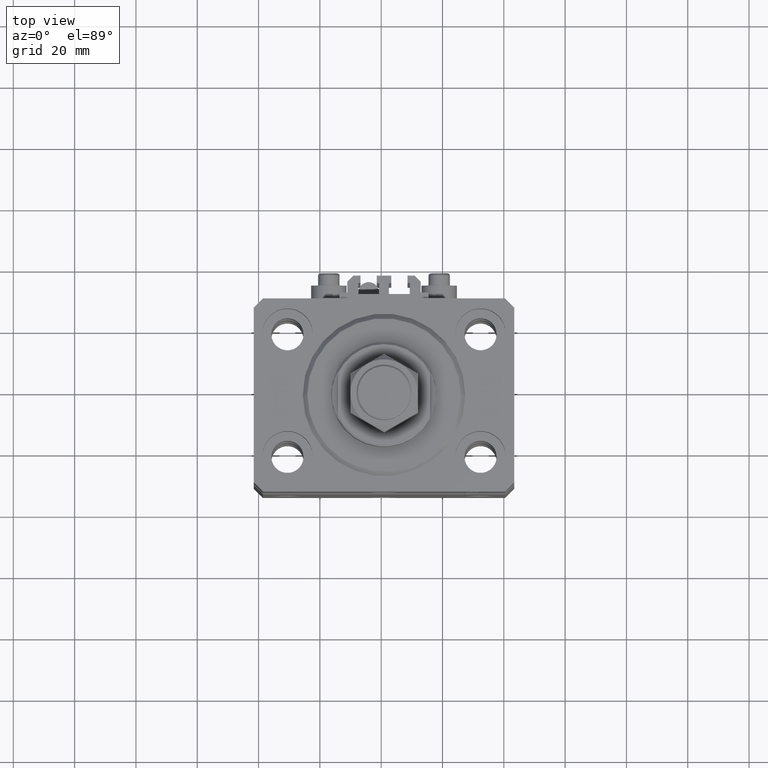
[diagram: clean part render]
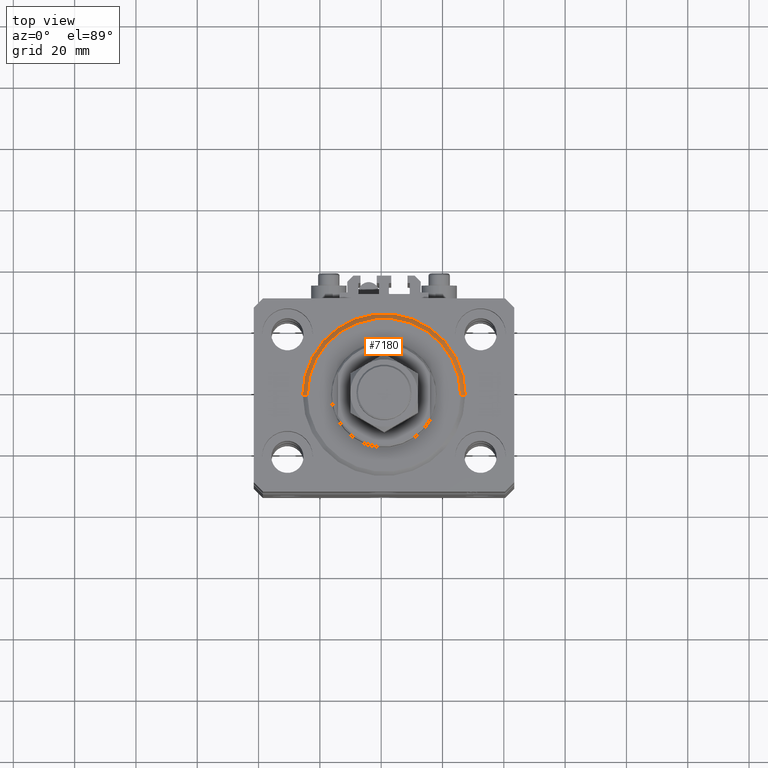
[diagram: same view with one face highlighted and labeled with its STEP entity id]
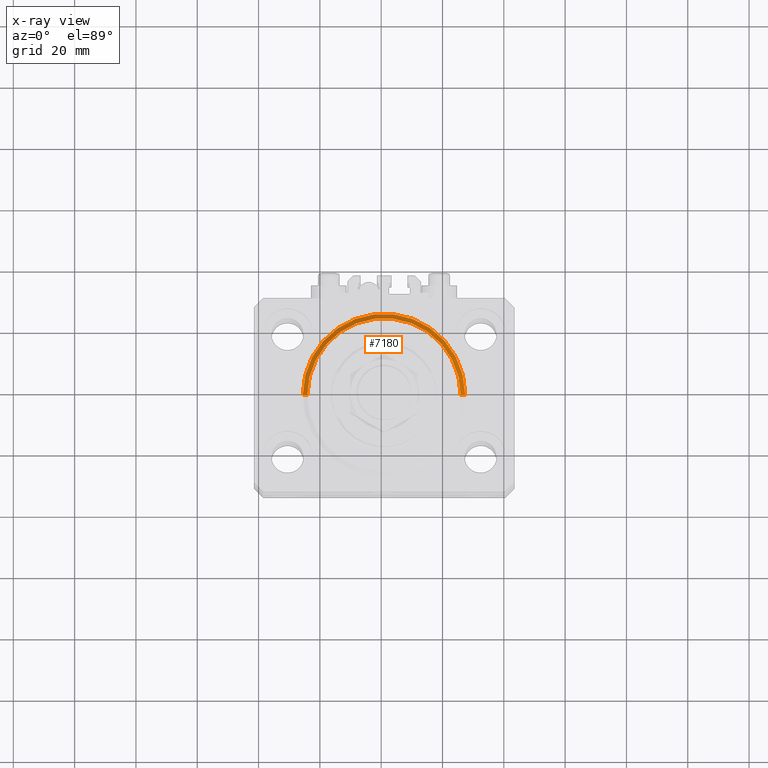
[diagram: x-ray of the same camera — body ghosted, the highlighted face saturated]
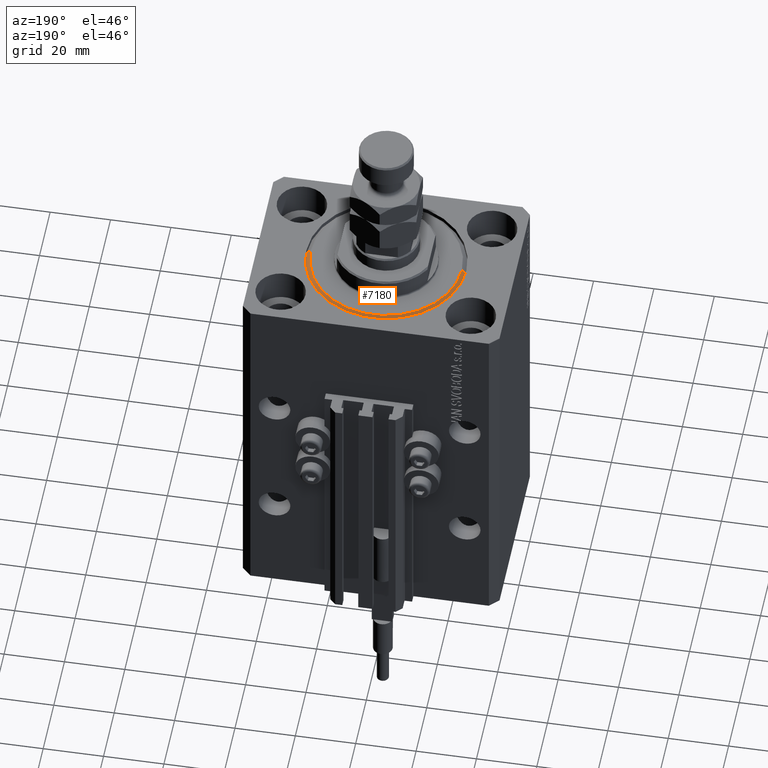
[diagram: same view with one face highlighted and labeled with its STEP entity id]
A machine part, top view. The second image highlights one B-rep face of the part: STEP entity #7180.
The next image is the same camera in x-ray: the body ghosted, the highlighted face saturated — about 0% of this face is hidden behind the body in this view.
A second angle (auxiliary view) of the same face is appended — the face is thin or edge-on in the first view.
In plain terms, the highlighted conical surface has half-angle 45 deg.
Its self-contained STEP definition (entity closure, byte-faithful):
#1087 = VECTOR ( 'NONE', #29552, 1000.000000000000000 ) ;
#2860 = ORIENTED_EDGE ( 'NONE', *, *, #47768, .T. ) ;
#5964 = EDGE_CURVE ( 'NONE', #34952, #26275, #23763, .T. ) ;
#7180 = ADVANCED_FACE ( 'NONE', ( #40769 ), #27183, .T. ) ;
#8708 = CIRCLE ( 'NONE', #34840, 24.99999999999998224 ) ;
#9049 = DIRECTION ( 'NONE',  ( 1.000000000000000000, 0.000000000000000000, 0.000000000000000000 ) ) ;
#9599 = CARTESIAN_POINT ( 'NONE',  ( 0.000000000000000000, 0.000000000000000000, 0.000000000000000000 ) ) ;
#9975 = EDGE_LOOP ( 'NONE', ( #11139, #2860, #43435, #16052 ) ) ;
#11139 = ORIENTED_EDGE ( 'NONE', *, *, #20149, .F. ) ;
#13605 = VERTEX_POINT ( 'NONE', #30894 ) ;
#13677 = CIRCLE ( 'NONE', #16130, 26.50000000000000355 ) ;
#14385 = CARTESIAN_POINT ( 'NONE',  ( 0.000000000000000000, 0.000000000000000000, 1.500000000000018652 ) ) ;
#16052 = ORIENTED_EDGE ( 'NONE', *, *, #5964, .F. ) ;
#16130 = AXIS2_PLACEMENT_3D ( 'NONE', #14385, #29753, #49428 ) ;
#16484 = CARTESIAN_POINT ( 'NONE',  ( 0.000000000000000000, 0.000000000000000000, 1.500000000000018652 ) ) ;
#20149 = EDGE_CURVE ( 'NONE', #13605, #34952, #8708, .T. ) ;
#21974 = EDGE_CURVE ( 'NONE', #26275, #34378, #13677, .T. ) ;
#22425 = CARTESIAN_POINT ( 'NONE',  ( 24.99999999999998224, 0.000000000000000000, 0.000000000000000000 ) ) ;
#23763 = LINE ( 'NONE', #26856, #33648 ) ;
#26275 = VERTEX_POINT ( 'NONE', #28920 ) ;
#26856 = CARTESIAN_POINT ( 'NONE',  ( 26.50000000000000355, 0.000000000000000000, 1.500000000000018652 ) ) ;
#27183 = CONICAL_SURFACE ( 'NONE', #27983, 26.50000000000000355, 0.7853981633974495002 ) ;
#27983 = AXIS2_PLACEMENT_3D ( 'NONE', #16484, #47948, #9049 ) ;
#28557 = DIRECTION ( 'NONE',  ( -0.000000000000000000, -0.000000000000000000, -1.000000000000000000 ) ) ;
#28920 = CARTESIAN_POINT ( 'NONE',  ( 26.50000000000000355, 3.245314017740486554E-15, 1.500000000000018652 ) ) ;
#29552 = DIRECTION ( 'NONE',  ( -0.7071067811865483499, 8.659560562354942719E-17, 0.7071067811865466846 ) ) ;
#29753 = DIRECTION ( 'NONE',  ( -0.000000000000000000, -0.000000000000000000, 1.000000000000000000 ) ) ;
#30894 = CARTESIAN_POINT ( 'NONE',  ( -24.99999999999998224, 3.153465507804433615E-15, 0.000000000000000000 ) ) ;
#32621 = LINE ( 'NONE', #44642, #1087 ) ;
#33648 = VECTOR ( 'NONE', #42458, 1000.000000000000000 ) ;
#34378 = VERTEX_POINT ( 'NONE', #37199 ) ;
#34840 = AXIS2_PLACEMENT_3D ( 'NONE', #9599, #28557, #48993 ) ;
#34952 = VERTEX_POINT ( 'NONE', #22425 ) ;
#37199 = CARTESIAN_POINT ( 'NONE',  ( -26.50000000000000355, 0.000000000000000000, 1.500000000000018652 ) ) ;
#40769 = FACE_OUTER_BOUND ( 'NONE', #9975, .T. ) ;
#42458 = DIRECTION ( 'NONE',  ( 0.7071067811865483499, 0.000000000000000000, 0.7071067811865466846 ) ) ;
#43435 = ORIENTED_EDGE ( 'NONE', *, *, #21974, .F. ) ;
#44642 = CARTESIAN_POINT ( 'NONE',  ( -26.50000000000000355, 3.245314017740486554E-15, 1.500000000000018652 ) ) ;
#47768 = EDGE_CURVE ( 'NONE', #13605, #34378, #32621, .T. ) ;
#47948 = DIRECTION ( 'NONE',  ( -0.000000000000000000, -0.000000000000000000, 1.000000000000000000 ) ) ;
#48993 = DIRECTION ( 'NONE',  ( 1.000000000000000000, 0.000000000000000000, 0.000000000000000000 ) ) ;
#49428 = DIRECTION ( 'NONE',  ( 1.000000000000000000, 0.000000000000000000, 0.000000000000000000 ) ) ;